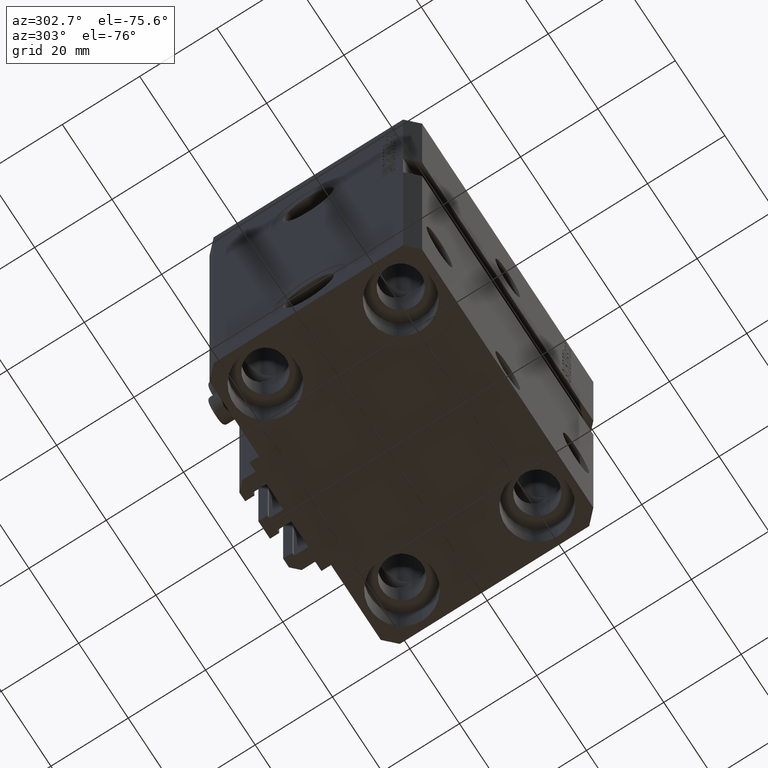
[diagram: clean part render]
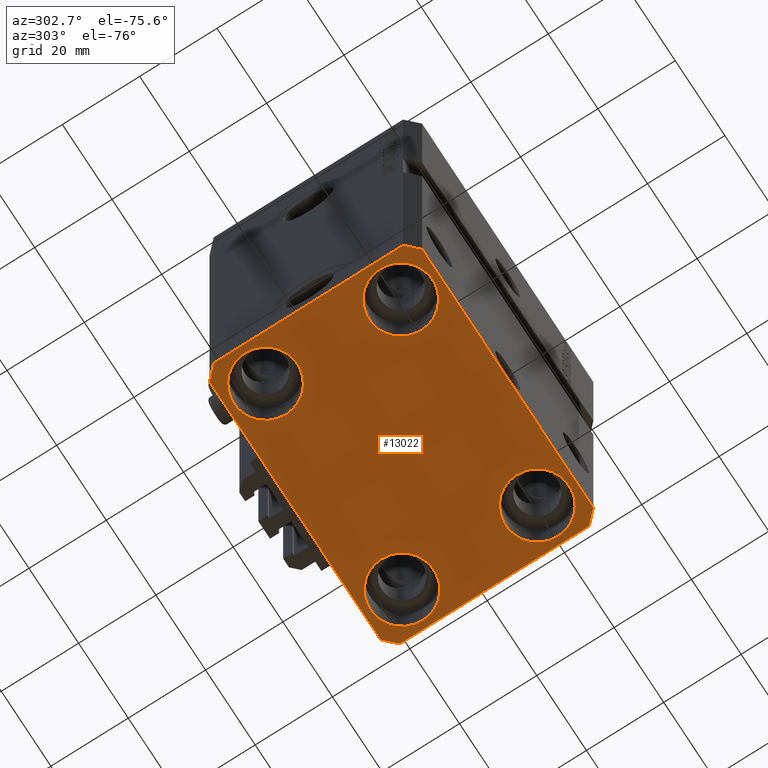
[diagram: same view with one face highlighted and labeled with its STEP entity id]
A machine part, auxiliary view. The second image highlights one B-rep face of the part: STEP entity #13022.
In plain terms, the highlighted planar face has unit normal (0, 0, 1).
Its self-contained STEP definition (entity closure, byte-faithful):
#133 = AXIS2_PLACEMENT_3D ( 'NONE', #3238, #18026, #22121 ) ;
#285 = VERTEX_POINT ( 'NONE', #5718 ) ;
#617 = DIRECTION ( 'NONE',  ( -1.000000000000000000, 0.000000000000000000, 0.000000000000000000 ) ) ;
#1012 = CARTESIAN_POINT ( 'NONE',  ( 37.50000000000051870, 24.49999999999995381, -110.0000000000000000 ) ) ;
#1787 = VERTEX_POINT ( 'NONE', #13220 ) ;
#1816 = VECTOR ( 'NONE', #38358, 1000.000000000000000 ) ;
#2144 = FACE_BOUND ( 'NONE', #33360, .T. ) ;
#2604 = ORIENTED_EDGE ( 'NONE', *, *, #47136, .F. ) ;
#2969 = AXIS2_PLACEMENT_3D ( 'NONE', #23817, #42937, #42694 ) ;
#3214 = VECTOR ( 'NONE', #44664, 1000.000000000000000 ) ;
#3227 = CIRCLE ( 'NONE', #35735, 8.250000000000000000 ) ;
#3238 = CARTESIAN_POINT ( 'NONE',  ( 27.50000000000000355, -17.50000000000000000, -110.0000000000000000 ) ) ;
#3485 = EDGE_CURVE ( 'NONE', #22564, #285, #36462, .T. ) ;
#3567 = ORIENTED_EDGE ( 'NONE', *, *, #43797, .F. ) ;
#3954 = EDGE_CURVE ( 'NONE', #28140, #26427, #3227, .T. ) ;
#4215 = LINE ( 'NONE', #29891, #3214 ) ;
#4267 = ORIENTED_EDGE ( 'NONE', *, *, #42436, .F. ) ;
#4338 = AXIS2_PLACEMENT_3D ( 'NONE', #8704, #23469, #12588 ) ;
#4897 = VERTEX_POINT ( 'NONE', #8135 ) ;
#5112 = VECTOR ( 'NONE', #8296, 1000.000000000000114 ) ;
#5718 = CARTESIAN_POINT ( 'NONE',  ( 19.25000000000000000, 17.50000000000001066, -110.0000000000000000 ) ) ;
#5982 = CARTESIAN_POINT ( 'NONE',  ( -27.50000000000000355, 17.50000000000000000, -110.0000000000000000 ) ) ;
#6699 = EDGE_CURVE ( 'NONE', #36260, #23102, #16000, .T. ) ;
#7331 = ORIENTED_EDGE ( 'NONE', *, *, #3954, .T. ) ;
#7838 = EDGE_CURVE ( 'NONE', #23588, #20205, #43608, .T. ) ;
#7931 = CARTESIAN_POINT ( 'NONE',  ( 27.49999999999999645, 17.50000000000001066, -110.0000000000000000 ) ) ;
#8004 = VECTOR ( 'NONE', #39243, 1000.000000000000114 ) ;
#8135 = CARTESIAN_POINT ( 'NONE',  ( -34.49999999999998579, -27.49999999999999645, -110.0000000000000000 ) ) ;
#8296 = DIRECTION ( 'NONE',  ( -0.7071067811865356934, 0.7071067811865594521, 0.000000000000000000 ) ) ;
#8302 = CARTESIAN_POINT ( 'NONE',  ( -27.50000000000000355, -17.50000000000000000, -110.0000000000000000 ) ) ;
#8704 = CARTESIAN_POINT ( 'NONE',  ( 0.000000000000000000, 0.000000000000000000, -110.0000000000000000 ) ) ;
#9161 = EDGE_CURVE ( 'NONE', #285, #22564, #38223, .T. ) ;
#9245 = VERTEX_POINT ( 'NONE', #14483 ) ;
#9265 = CARTESIAN_POINT ( 'NONE',  ( 35.75000000000000711, -17.50000000000000000, -110.0000000000000000 ) ) ;
#10481 = CARTESIAN_POINT ( 'NONE',  ( -34.49999999999998579, -27.49999999999999645, -110.0000000000000000 ) ) ;
#10730 = VERTEX_POINT ( 'NONE', #18788 ) ;
#11356 = EDGE_CURVE ( 'NONE', #23645, #4897, #13966, .T. ) ;
#11457 = VERTEX_POINT ( 'NONE', #25332 ) ;
#12572 = DIRECTION ( 'NONE',  ( -0.000000000000000000, -0.000000000000000000, 1.000000000000000000 ) ) ;
#12588 = DIRECTION ( 'NONE',  ( 1.000000000000000000, 0.000000000000000000, -0.000000000000000000 ) ) ;
#12852 = CARTESIAN_POINT ( 'NONE',  ( 19.25000000000000000, -17.50000000000000000, -110.0000000000000000 ) ) ;
#12958 = EDGE_CURVE ( 'NONE', #26427, #28140, #30602, .T. ) ;
#13022 = ADVANCED_FACE ( 'NONE', ( #30983, #35107, #20092, #2144, #41874 ), #45752, .F. ) ;
#13220 = CARTESIAN_POINT ( 'NONE',  ( -37.49999999999999289, 24.50000000000000000, -110.0000000000000000 ) ) ;
#13966 = LINE ( 'NONE', #23896, #33666 ) ;
#14483 = CARTESIAN_POINT ( 'NONE',  ( -34.49999999999999289, 27.50000000000000000, -110.0000000000000000 ) ) ;
#14902 = EDGE_CURVE ( 'NONE', #11457, #10730, #18995, .T. ) ;
#15163 = CARTESIAN_POINT ( 'NONE',  ( 34.50000000000056843, 27.50000000000000000, -110.0000000000000000 ) ) ;
#15464 = CARTESIAN_POINT ( 'NONE',  ( -35.75000000000000711, 17.50000000000000000, -110.0000000000000000 ) ) ;
#16000 = LINE ( 'NONE', #31492, #8004 ) ;
#16278 = DIRECTION ( 'NONE',  ( -0.000000000000000000, -0.000000000000000000, 1.000000000000000000 ) ) ;
#16457 = DIRECTION ( 'NONE',  ( 1.000000000000000000, 0.000000000000000000, 0.000000000000000000 ) ) ;
#16965 = DIRECTION ( 'NONE',  ( -0.000000000000000000, -0.000000000000000000, 1.000000000000000000 ) ) ;
#17368 = EDGE_CURVE ( 'NONE', #36948, #9245, #44935, .T. ) ;
#18026 = DIRECTION ( 'NONE',  ( -0.000000000000000000, -0.000000000000000000, 1.000000000000000000 ) ) ;
#18104 = AXIS2_PLACEMENT_3D ( 'NONE', #42817, #12572, #31206 ) ;
#18155 = VECTOR ( 'NONE', #36199, 1000.000000000000000 ) ;
#18788 = CARTESIAN_POINT ( 'NONE',  ( -35.75000000000000711, -17.50000000000000000, -110.0000000000000000 ) ) ;
#18980 = CARTESIAN_POINT ( 'NONE',  ( 34.49999999999999289, -27.49999999999999645, -110.0000000000000000 ) ) ;
#18995 = CIRCLE ( 'NONE', #22847, 8.250000000000000000 ) ;
#19444 = DIRECTION ( 'NONE',  ( 1.000000000000000000, 0.000000000000000000, 0.000000000000000000 ) ) ;
#19914 = ORIENTED_EDGE ( 'NONE', *, *, #33062, .F. ) ;
#20092 = FACE_BOUND ( 'NONE', #45038, .T. ) ;
#20205 = VERTEX_POINT ( 'NONE', #12852 ) ;
#20603 = DIRECTION ( 'NONE',  ( 1.000000000000000000, 0.000000000000000000, 0.000000000000000000 ) ) ;
#21891 = EDGE_CURVE ( 'NONE', #10730, #11457, #47845, .T. ) ;
#22027 = ORIENTED_EDGE ( 'NONE', *, *, #12958, .T. ) ;
#22121 = DIRECTION ( 'NONE',  ( 1.000000000000000000, 0.000000000000000000, 0.000000000000000000 ) ) ;
#22125 = VECTOR ( 'NONE', #617, 1000.000000000000000 ) ;
#22564 = VERTEX_POINT ( 'NONE', #30622 ) ;
#22765 = EDGE_LOOP ( 'NONE', ( #44831, #25842 ) ) ;
#22847 = AXIS2_PLACEMENT_3D ( 'NONE', #8302, #16278, #19444 ) ;
#22852 = ORIENTED_EDGE ( 'NONE', *, *, #21891, .T. ) ;
#23054 = ORIENTED_EDGE ( 'NONE', *, *, #42230, .F. ) ;
#23102 = VERTEX_POINT ( 'NONE', #30511 ) ;
#23469 = DIRECTION ( 'NONE',  ( 0.000000000000000000, 0.000000000000000000, 1.000000000000000000 ) ) ;
#23574 = CARTESIAN_POINT ( 'NONE',  ( -37.49999999999999289, 24.50000000000000000, -110.0000000000000000 ) ) ;
#23588 = VERTEX_POINT ( 'NONE', #9265 ) ;
#23645 = VERTEX_POINT ( 'NONE', #28143 ) ;
#23817 = CARTESIAN_POINT ( 'NONE',  ( -27.50000000000000355, -17.50000000000000000, -110.0000000000000000 ) ) ;
#23896 = CARTESIAN_POINT ( 'NONE',  ( -37.49999999999999289, -24.50000000000000000, -110.0000000000000000 ) ) ;
#24135 = DIRECTION ( 'NONE',  ( -0.000000000000000000, -0.000000000000000000, 1.000000000000000000 ) ) ;
#24745 = LINE ( 'NONE', #10481, #35100 ) ;
#25332 = CARTESIAN_POINT ( 'NONE',  ( -19.25000000000000355, -17.50000000000000000, -110.0000000000000000 ) ) ;
#25375 = DIRECTION ( 'NONE',  ( -0.000000000000000000, -0.000000000000000000, 1.000000000000000000 ) ) ;
#25842 = ORIENTED_EDGE ( 'NONE', *, *, #7838, .T. ) ;
#26427 = VERTEX_POINT ( 'NONE', #15464 ) ;
#28140 = VERTEX_POINT ( 'NONE', #45076 ) ;
#28143 = CARTESIAN_POINT ( 'NONE',  ( -37.49999999999999289, -24.50000000000000000, -110.0000000000000000 ) ) ;
#28973 = DIRECTION ( 'NONE',  ( 1.000000000000000000, 0.000000000000000000, 0.000000000000000000 ) ) ;
#29072 = VERTEX_POINT ( 'NONE', #1012 ) ;
#29891 = CARTESIAN_POINT ( 'NONE',  ( -34.49999999999999289, 27.50000000000000000, -110.0000000000000000 ) ) ;
#30511 = CARTESIAN_POINT ( 'NONE',  ( 37.49999999999999289, -24.50000000000000000, -110.0000000000000000 ) ) ;
#30602 = CIRCLE ( 'NONE', #42977, 8.250000000000000000 ) ;
#30622 = CARTESIAN_POINT ( 'NONE',  ( 35.74999999999999289, 17.50000000000001066, -110.0000000000000000 ) ) ;
#30983 = FACE_BOUND ( 'NONE', #42448, .T. ) ;
#31206 = DIRECTION ( 'NONE',  ( 1.000000000000000000, 0.000000000000000000, 0.000000000000000000 ) ) ;
#31492 = CARTESIAN_POINT ( 'NONE',  ( 34.49999999999999289, -27.49999999999999645, -110.0000000000000000 ) ) ;
#31653 = DIRECTION ( 'NONE',  ( 0.7071067811865483499, -0.7071067811865466846, 0.000000000000000000 ) ) ;
#31953 = CARTESIAN_POINT ( 'NONE',  ( 37.50000000000051870, 24.49999999999995381, -110.0000000000000000 ) ) ;
#32562 = LINE ( 'NONE', #36429, #18155 ) ;
#33062 = EDGE_CURVE ( 'NONE', #9245, #1787, #4215, .T. ) ;
#33360 = EDGE_LOOP ( 'NONE', ( #22027, #7331 ) ) ;
#33666 = VECTOR ( 'NONE', #31653, 1000.000000000000000 ) ;
#34449 = LINE ( 'NONE', #31953, #5112 ) ;
#35100 = VECTOR ( 'NONE', #47762, 1000.000000000000000 ) ;
#35107 = FACE_BOUND ( 'NONE', #22765, .T. ) ;
#35735 = AXIS2_PLACEMENT_3D ( 'NONE', #5982, #24135, #28973 ) ;
#36081 = EDGE_CURVE ( 'NONE', #20205, #23588, #44216, .T. ) ;
#36199 = DIRECTION ( 'NONE',  ( 1.076236605503979380E-14, 1.000000000000000000, 0.000000000000000000 ) ) ;
#36260 = VERTEX_POINT ( 'NONE', #18980 ) ;
#36429 = CARTESIAN_POINT ( 'NONE',  ( 37.49999999999999289, -24.50000000000000000, -110.0000000000000000 ) ) ;
#36462 = CIRCLE ( 'NONE', #43401, 8.249999999999992895 ) ;
#36948 = VERTEX_POINT ( 'NONE', #40044 ) ;
#37649 = ORIENTED_EDGE ( 'NONE', *, *, #14902, .T. ) ;
#38223 = CIRCLE ( 'NONE', #18104, 8.249999999999992895 ) ;
#38358 = DIRECTION ( 'NONE',  ( 0.000000000000000000, -1.000000000000000000, 0.000000000000000000 ) ) ;
#38741 = DIRECTION ( 'NONE',  ( -0.000000000000000000, -0.000000000000000000, 1.000000000000000000 ) ) ;
#39010 = ORIENTED_EDGE ( 'NONE', *, *, #3485, .T. ) ;
#39243 = DIRECTION ( 'NONE',  ( 0.7071067811865474617, 0.7071067811865474617, 0.000000000000000000 ) ) ;
#39602 = ORIENTED_EDGE ( 'NONE', *, *, #17368, .F. ) ;
#40044 = CARTESIAN_POINT ( 'NONE',  ( 34.50000000000056843, 27.50000000000000000, -110.0000000000000000 ) ) ;
#40155 = DIRECTION ( 'NONE',  ( 1.000000000000000000, 0.000000000000000000, 0.000000000000000000 ) ) ;
#41874 = FACE_OUTER_BOUND ( 'NONE', #47518, .T. ) ;
#42106 = ORIENTED_EDGE ( 'NONE', *, *, #11356, .F. ) ;
#42230 = EDGE_CURVE ( 'NONE', #1787, #23645, #45138, .T. ) ;
#42436 = EDGE_CURVE ( 'NONE', #4897, #36260, #24745, .T. ) ;
#42448 = EDGE_LOOP ( 'NONE', ( #22852, #37649 ) ) ;
#42694 = DIRECTION ( 'NONE',  ( 1.000000000000000000, 0.000000000000000000, 0.000000000000000000 ) ) ;
#42810 = AXIS2_PLACEMENT_3D ( 'NONE', #46024, #16965, #20603 ) ;
#42817 = CARTESIAN_POINT ( 'NONE',  ( 27.49999999999999645, 17.50000000000001066, -110.0000000000000000 ) ) ;
#42937 = DIRECTION ( 'NONE',  ( -0.000000000000000000, -0.000000000000000000, 1.000000000000000000 ) ) ;
#42977 = AXIS2_PLACEMENT_3D ( 'NONE', #45991, #38741, #16457 ) ;
#43401 = AXIS2_PLACEMENT_3D ( 'NONE', #7931, #25375, #40155 ) ;
#43608 = CIRCLE ( 'NONE', #42810, 8.250000000000000000 ) ;
#43797 = EDGE_CURVE ( 'NONE', #23102, #29072, #32562, .T. ) ;
#44216 = CIRCLE ( 'NONE', #133, 8.250000000000000000 ) ;
#44313 = ORIENTED_EDGE ( 'NONE', *, *, #6699, .F. ) ;
#44664 = DIRECTION ( 'NONE',  ( -0.7071067811865471286, -0.7071067811865479058, 0.000000000000000000 ) ) ;
#44831 = ORIENTED_EDGE ( 'NONE', *, *, #36081, .T. ) ;
#44935 = LINE ( 'NONE', #15163, #22125 ) ;
#45038 = EDGE_LOOP ( 'NONE', ( #46876, #39010 ) ) ;
#45076 = CARTESIAN_POINT ( 'NONE',  ( -19.25000000000000355, 17.50000000000000000, -110.0000000000000000 ) ) ;
#45138 = LINE ( 'NONE', #23574, #1816 ) ;
#45752 = PLANE ( 'NONE',  #4338 ) ;
#45991 = CARTESIAN_POINT ( 'NONE',  ( -27.50000000000000355, 17.50000000000000000, -110.0000000000000000 ) ) ;
#46024 = CARTESIAN_POINT ( 'NONE',  ( 27.50000000000000355, -17.50000000000000000, -110.0000000000000000 ) ) ;
#46876 = ORIENTED_EDGE ( 'NONE', *, *, #9161, .T. ) ;
#47136 = EDGE_CURVE ( 'NONE', #29072, #36948, #34449, .T. ) ;
#47518 = EDGE_LOOP ( 'NONE', ( #39602, #2604, #3567, #44313, #4267, #42106, #23054, #19914 ) ) ;
#47762 = DIRECTION ( 'NONE',  ( 1.000000000000000000, 0.000000000000000000, 0.000000000000000000 ) ) ;
#47845 = CIRCLE ( 'NONE', #2969, 8.250000000000000000 ) ;